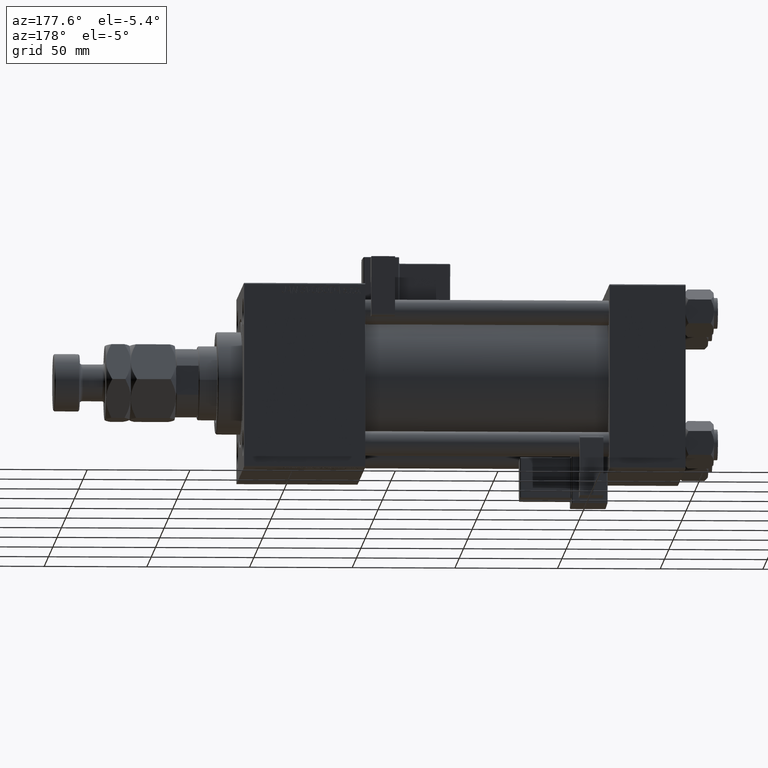
[diagram: clean part render]
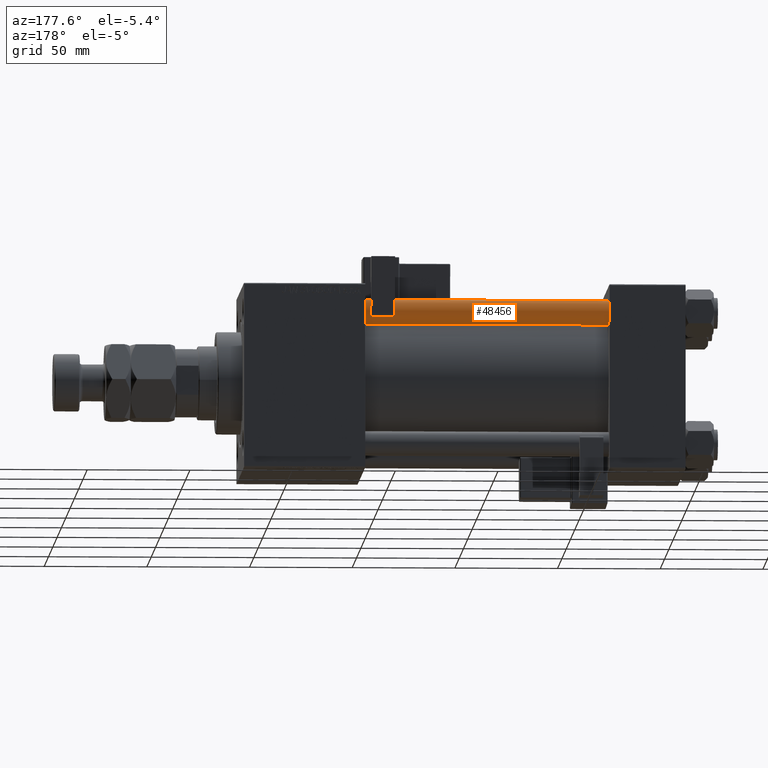
[diagram: same view with one face highlighted and labeled with its STEP entity id]
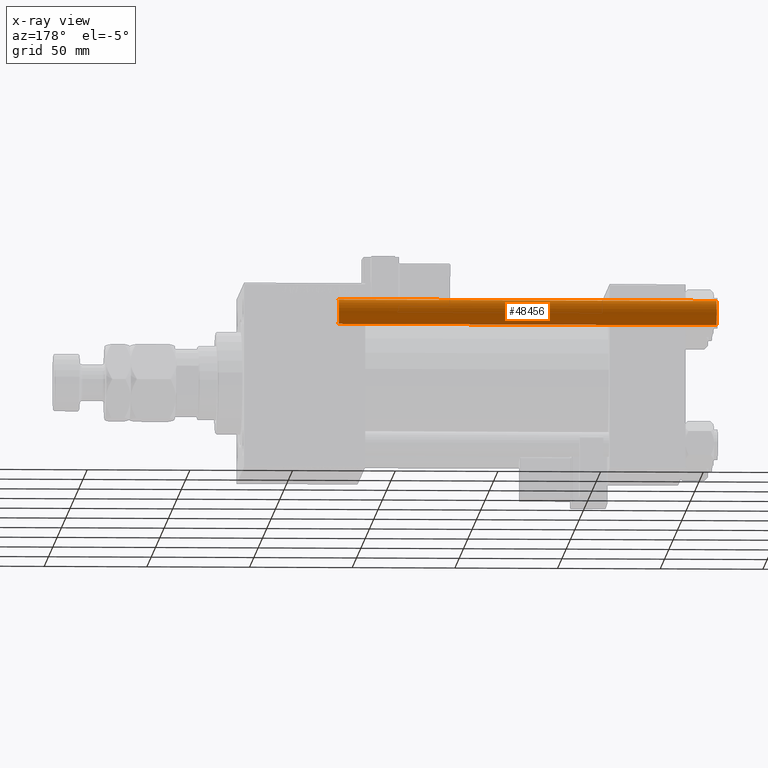
[diagram: x-ray of the same camera — body ghosted, the highlighted face saturated]
A machine part, auxiliary view. The second image highlights one B-rep face of the part: STEP entity #48456.
The next image is the same camera in x-ray: the body ghosted, the highlighted face saturated — about 0% of this face is hidden behind the body in this view.
In plain terms, the highlighted cylindrical surface (edge-blend (fillet) strip) has radius 6 mm, axis along (-1, 0, 0).
Its self-contained STEP definition (entity closure, byte-faithful):
#806 = CARTESIAN_POINT ( 'NONE',  ( -6.000000000000000888, 0.000000000000000000, 0.5000000000000281997 ) ) ;
#1515 = ORIENTED_EDGE ( 'NONE', *, *, #35591, .T. ) ;
#1825 = CARTESIAN_POINT ( 'NONE',  ( -6.000000000000000888, 0.000000000000000000, 185.0000000000000000 ) ) ;
#4231 = CARTESIAN_POINT ( 'NONE',  ( 0.000000000000000000, 0.000000000000000000, 184.5000000000000000 ) ) ;
#5094 = EDGE_LOOP ( 'NONE', ( #41614, #1515, #32585, #13931 ) ) ;
#6291 = EDGE_CURVE ( 'NONE', #39187, #7209, #7810, .T. ) ;
#7115 = EDGE_CURVE ( 'NONE', #39187, #36501, #22365, .T. ) ;
#7209 = VERTEX_POINT ( 'NONE', #7290 ) ;
#7290 = CARTESIAN_POINT ( 'NONE',  ( 6.000000000000000888, 7.347880794884120722E-16, 184.5000000000000000 ) ) ;
#7810 = CIRCLE ( 'NONE', #34899, 6.000000000000000888 ) ;
#10981 = VERTEX_POINT ( 'NONE', #44213 ) ;
#13931 = ORIENTED_EDGE ( 'NONE', *, *, #7115, .F. ) ;
#15299 = CARTESIAN_POINT ( 'NONE',  ( -6.000000000000000888, 0.000000000000000000, 184.5000000000000000 ) ) ;
#17839 = VECTOR ( 'NONE', #38012, 1000.000000000000000 ) ;
#18678 = AXIS2_PLACEMENT_3D ( 'NONE', #24611, #53373, #19967 ) ;
#19714 = CYLINDRICAL_SURFACE ( 'NONE', #18678, 6.000000000000000888 ) ;
#19967 = DIRECTION ( 'NONE',  ( -1.000000000000000000, 0.000000000000000000, 0.000000000000000000 ) ) ;
#22365 = LINE ( 'NONE', #1825, #53318 ) ;
#23511 = DIRECTION ( 'NONE',  ( -0.000000000000000000, -0.000000000000000000, 1.000000000000000000 ) ) ;
#24303 = DIRECTION ( 'NONE',  ( 1.000000000000000000, 0.000000000000000000, 0.000000000000000000 ) ) ;
#24611 = CARTESIAN_POINT ( 'NONE',  ( 0.000000000000000000, 0.000000000000000000, 185.0000000000000000 ) ) ;
#25312 = DIRECTION ( 'NONE',  ( 0.000000000000000000, 0.000000000000000000, -1.000000000000000000 ) ) ;
#25430 = CARTESIAN_POINT ( 'NONE',  ( 6.000000000000000888, 7.347880794884120722E-16, 185.0000000000000000 ) ) ;
#32585 = ORIENTED_EDGE ( 'NONE', *, *, #32601, .T. ) ;
#32601 = EDGE_CURVE ( 'NONE', #10981, #36501, #43062, .T. ) ;
#34312 = AXIS2_PLACEMENT_3D ( 'NONE', #40736, #23511, #24303 ) ;
#34899 = AXIS2_PLACEMENT_3D ( 'NONE', #4231, #25312, #37626 ) ;
#35591 = EDGE_CURVE ( 'NONE', #7209, #10981, #46236, .T. ) ;
#36501 = VERTEX_POINT ( 'NONE', #806 ) ;
#36934 = FACE_OUTER_BOUND ( 'NONE', #5094, .T. ) ;
#37626 = DIRECTION ( 'NONE',  ( 1.000000000000000000, 0.000000000000000000, 0.000000000000000000 ) ) ;
#38012 = DIRECTION ( 'NONE',  ( -0.000000000000000000, -0.000000000000000000, -1.000000000000000000 ) ) ;
#39187 = VERTEX_POINT ( 'NONE', #15299 ) ;
#40736 = CARTESIAN_POINT ( 'NONE',  ( 0.000000000000000000, 0.000000000000000000, 0.5000000000000281997 ) ) ;
#41614 = ORIENTED_EDGE ( 'NONE', *, *, #6291, .T. ) ;
#43062 = CIRCLE ( 'NONE', #34312, 6.000000000000000888 ) ;
#43991 = DIRECTION ( 'NONE',  ( -0.000000000000000000, -0.000000000000000000, -1.000000000000000000 ) ) ;
#44213 = CARTESIAN_POINT ( 'NONE',  ( 6.000000000000000888, 7.347880794884120722E-16, 0.5000000000000281997 ) ) ;
#46236 = LINE ( 'NONE', #25430, #17839 ) ;
#48456 = ADVANCED_FACE ( 'NONE', ( #36934 ), #19714, .T. ) ;
#53318 = VECTOR ( 'NONE', #43991, 1000.000000000000000 ) ;
#53373 = DIRECTION ( 'NONE',  ( -0.000000000000000000, -0.000000000000000000, -1.000000000000000000 ) ) ;